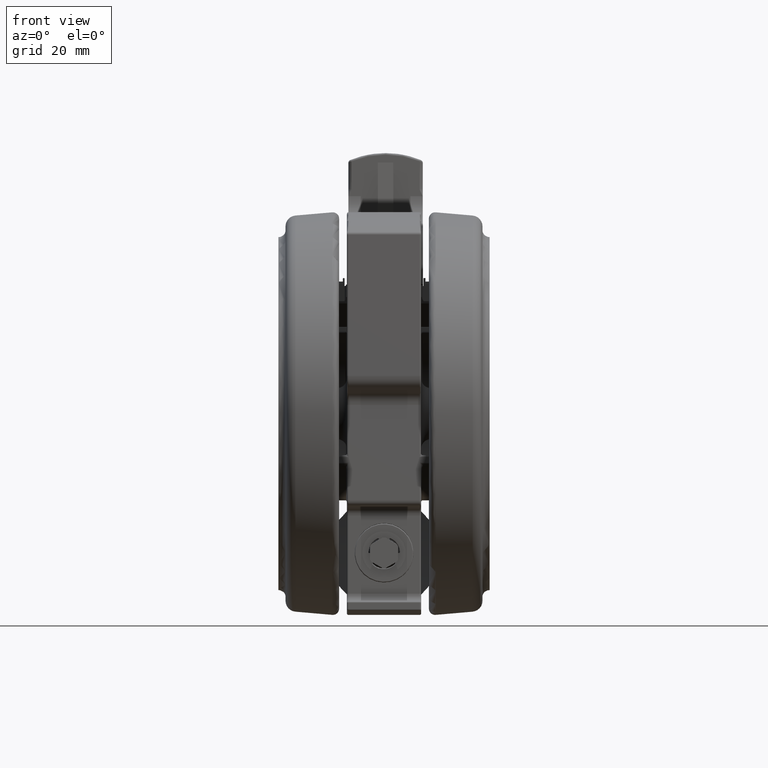
[diagram: clean part render]
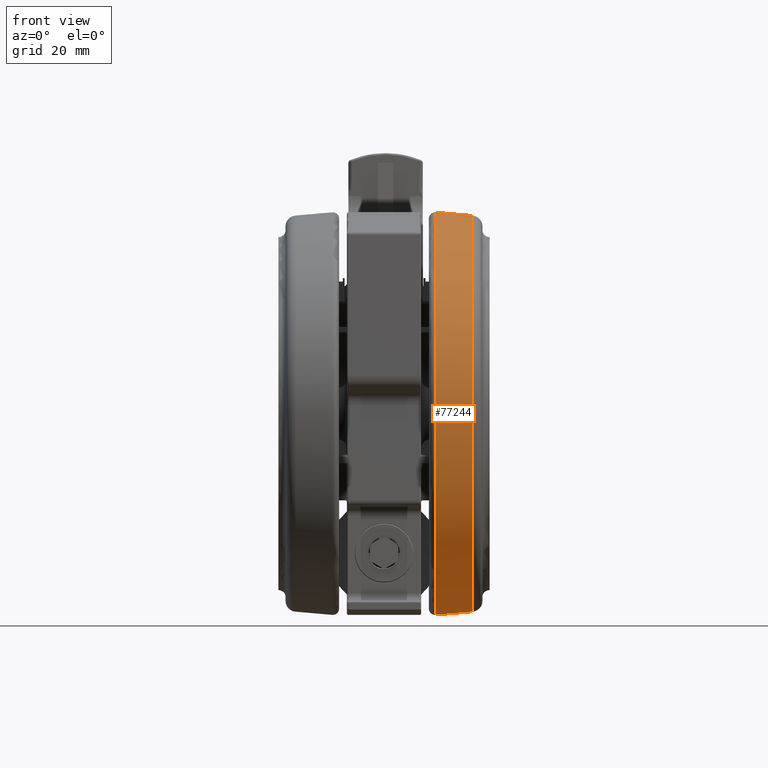
[diagram: same view with one face highlighted and labeled with its STEP entity id]
A machine part, front view. The second image highlights one B-rep face of the part: STEP entity #77244.
In plain terms, the highlighted conical surface has half-angle 4.961 deg.
Its self-contained STEP definition (entity closure, byte-faithful):
#4453 = DIRECTION ( 'NONE',  ( 1.000000000000000000, 0.0000000000000000000, 0.0000000000000000000 ) ) ;
#5136 = CARTESIAN_POINT ( 'NONE',  ( 64.99250634235663400, -1.979628912955580400E-014, -17.42703041981686600 ) ) ;
#7560 = CARTESIAN_POINT ( 'NONE',  ( 2.775557561562891400E-014, -2.775557561562891400E-014, -5.497303234679479000 ) ) ;
#8392 = EDGE_CURVE ( 'NONE', #52566, #52784, #17871, .T. ) ;
#8645 = AXIS2_PLACEMENT_3D ( 'NONE', #79689, #42138, #4453 ) ;
#13902 = DIRECTION ( 'NONE',  ( 1.000000000000000000, 0.0000000000000000000, 0.0000000000000000000 ) ) ;
#17788 = CARTESIAN_POINT ( 'NONE',  ( -63.95688609912403400, -2.775557561562891400E-014, -5.497303234679479000 ) ) ;
#17871 = CIRCLE ( 'NONE', #8645, 64.99250634235660600 ) ;
#19184 = CARTESIAN_POINT ( 'NONE',  ( -63.95688609912403400, -1.992311603115649900E-014, -5.497303234679479000 ) ) ;
#19210 = AXIS2_PLACEMENT_3D ( 'NONE', #63610, #69918, #19656 ) ;
#19656 = DIRECTION ( 'NONE',  ( -1.000000000000000000, 0.0000000000000000000, 0.0000000000000000000 ) ) ;
#23585 = FACE_OUTER_BOUND ( 'NONE', #61298, .T. ) ;
#24610 = ORIENTED_EDGE ( 'NONE', *, *, #50141, .F. ) ;
#25219 = CARTESIAN_POINT ( 'NONE',  ( 63.95688609912409100, -2.775557561562891400E-014, -5.497303234679479000 ) ) ;
#25814 = VERTEX_POINT ( 'NONE', #19184 ) ;
#26382 = ORIENTED_EDGE ( 'NONE', *, *, #8392, .T. ) ;
#31967 = CARTESIAN_POINT ( 'NONE',  ( 63.95688609912409100, -1.992311603115649900E-014, -5.497303234679479000 ) ) ;
#34037 = CARTESIAN_POINT ( 'NONE',  ( -64.99250634235657700, -2.775557561562891400E-014, -17.42703041981686600 ) ) ;
#36669 = CIRCLE ( 'NONE', #39741, 63.95688609912406300 ) ;
#39741 = AXIS2_PLACEMENT_3D ( 'NONE', #7560, #51516, #13902 ) ;
#42138 = DIRECTION ( 'NONE',  ( 0.0000000000000000000, 0.0000000000000000000, 1.000000000000000000 ) ) ;
#43102 = DIRECTION ( 'NONE',  ( -0.08648479009161678900, 0.0000000000000000000, -0.9962531711782949300 ) ) ;
#46050 = LINE ( 'NONE', #17788, #62734 ) ;
#46402 = ORIENTED_EDGE ( 'NONE', *, *, #49650, .F. ) ;
#49283 = VECTOR ( 'NONE', #75854, 1000.000000000000000 ) ;
#49650 = EDGE_CURVE ( 'NONE', #25814, #80319, #36669, .T. ) ;
#50141 = EDGE_CURVE ( 'NONE', #80319, #52784, #65977, .T. ) ;
#50167 = ORIENTED_EDGE ( 'NONE', *, *, #70457, .T. ) ;
#51516 = DIRECTION ( 'NONE',  ( 0.0000000000000000000, 0.0000000000000000000, 1.000000000000000000 ) ) ;
#52566 = VERTEX_POINT ( 'NONE', #34037 ) ;
#52784 = VERTEX_POINT ( 'NONE', #5136 ) ;
#61298 = EDGE_LOOP ( 'NONE', ( #24610, #46402, #50167, #26382 ) ) ;
#62734 = VECTOR ( 'NONE', #43102, 1000.000000000000000 ) ;
#63610 = CARTESIAN_POINT ( 'NONE',  ( 2.775557561562891400E-014, -2.775557561562891400E-014, -5.497303234679479000 ) ) ;
#65977 = LINE ( 'NONE', #31967, #49283 ) ;
#67744 = CONICAL_SURFACE ( 'NONE', #19210, 63.95688609912406300, 0.08659296680489261800 ) ;
#69918 = DIRECTION ( 'NONE',  ( -0.0000000000000000000, -0.0000000000000000000, -1.000000000000000000 ) ) ;
#70457 = EDGE_CURVE ( 'NONE', #25814, #52566, #46050, .T. ) ;
#75854 = DIRECTION ( 'NONE',  ( 0.08648479009161678900, 1.059133213606292300E-017, -0.9962531711782949300 ) ) ;
#77244 = ADVANCED_FACE ( 'NONE', ( #23585 ), #67744, .T. ) ;
#79689 = CARTESIAN_POINT ( 'NONE',  ( 2.775557561562891400E-014, -2.775557561562891400E-014, -17.42703041981686600 ) ) ;
#80319 = VERTEX_POINT ( 'NONE', #25219 ) ;